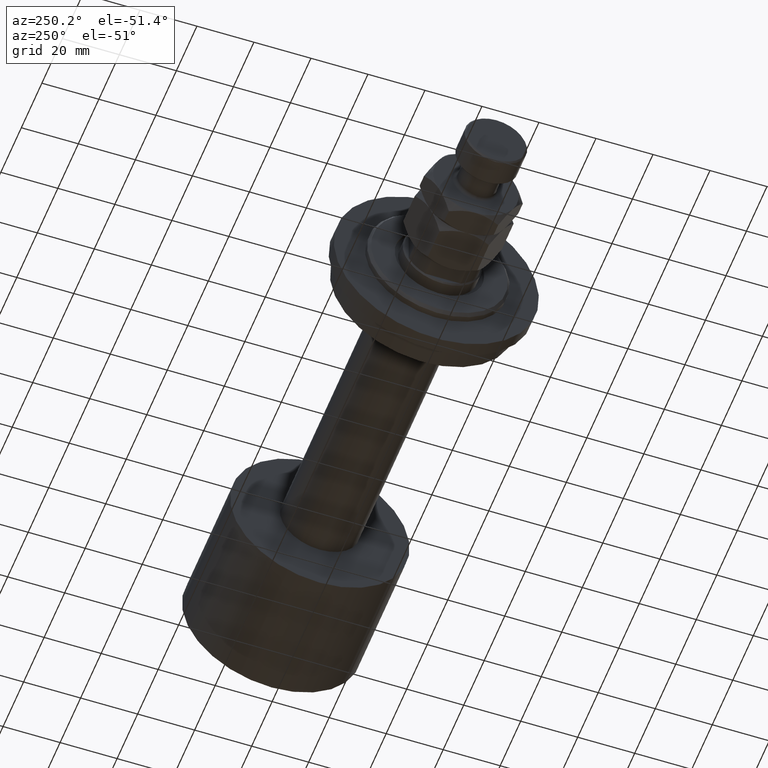
[diagram: clean part render]
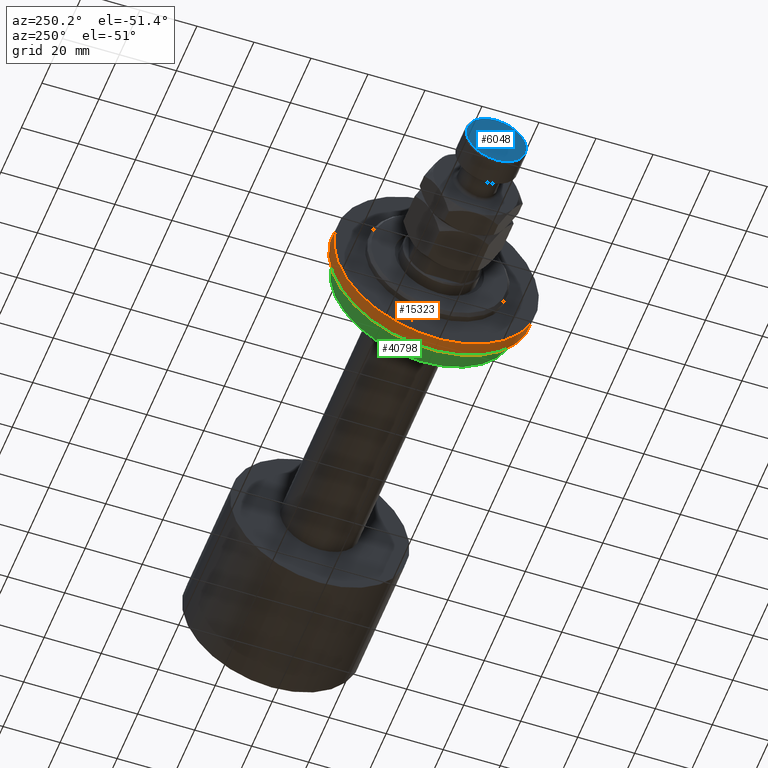
[diagram: same view with three faces highlighted in distinct colors, each labeled with its STEP entity id]
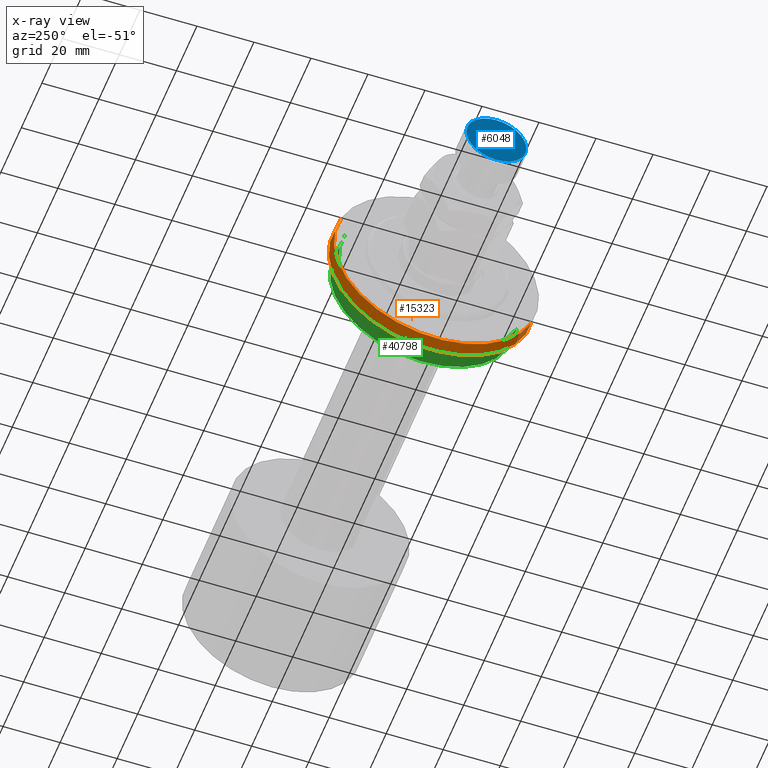
[diagram: x-ray of the same camera — body ghosted, the three highlighted faces saturated]
A machine part, auxiliary view with three faces highlighted in distinct colors.
The next image is the same camera in x-ray (body ghosted, the three faces saturated) — at least one of them is partly hidden behind the body in this view.
Their STEP definitions:

[orange] entity #15323 — the highlighted cylindrical surface (partial cylindrical patch) has radius 36 mm, axis along (-1, 0, 0).
#344 = VERTEX_POINT ( 'NONE', #1609 ) ;
#656 = DIRECTION ( 'NONE',  ( 1.000000000000000000, -0.000000000000000000, -0.000000000000000000 ) ) ;
#1609 = CARTESIAN_POINT ( 'NONE',  ( 0.000000000000000000, 4.408728476930470856E-15, 36.00000000000000000 ) ) ;
#2056 = VERTEX_POINT ( 'NONE', #14417 ) ;
#2481 = CARTESIAN_POINT ( 'NONE',  ( -5.000000000000000000, 0.000000000000000000, 0.000000000000000000 ) ) ;
#4038 = EDGE_LOOP ( 'NONE', ( #34679, #7449, #7803, #10973 ) ) ;
#5909 = CARTESIAN_POINT ( 'NONE',  ( -5.000000000000000000, 0.000000000000000000, -36.00000000000000000 ) ) ;
#6864 = VECTOR ( 'NONE', #656, 1000.000000000000000 ) ;
#7449 = ORIENTED_EDGE ( 'NONE', *, *, #14427, .T. ) ;
#7803 = ORIENTED_EDGE ( 'NONE', *, *, #19294, .T. ) ;
#7865 = CIRCLE ( 'NONE', #44563, 36.00000000000000000 ) ;
#10973 = ORIENTED_EDGE ( 'NONE', *, *, #26623, .F. ) ;
#11723 = EDGE_CURVE ( 'NONE', #35281, #20824, #7865, .T. ) ;
#13035 = CYLINDRICAL_SURFACE ( 'NONE', #31116, 36.00000000000000000 ) ;
#13605 = AXIS2_PLACEMENT_3D ( 'NONE', #32541, #18270, #14819 ) ;
#14417 = CARTESIAN_POINT ( 'NONE',  ( 0.000000000000000000, 0.000000000000000000, -36.00000000000000000 ) ) ;
#14427 = EDGE_CURVE ( 'NONE', #35281, #344, #43429, .T. ) ;
#14819 = DIRECTION ( 'NONE',  ( 0.000000000000000000, 0.000000000000000000, 1.000000000000000000 ) ) ;
#15323 = ADVANCED_FACE ( 'NONE', ( #27059 ), #13035, .T. ) ;
#17294 = DIRECTION ( 'NONE',  ( 0.000000000000000000, 0.000000000000000000, 1.000000000000000000 ) ) ;
#18270 = DIRECTION ( 'NONE',  ( -1.000000000000000000, 0.000000000000000000, 0.000000000000000000 ) ) ;
#19294 = EDGE_CURVE ( 'NONE', #344, #2056, #36378, .T. ) ;
#19676 = VECTOR ( 'NONE', #30053, 1000.000000000000000 ) ;
#20824 = VERTEX_POINT ( 'NONE', #36586 ) ;
#22911 = LINE ( 'NONE', #5909, #19676 ) ;
#23962 = CARTESIAN_POINT ( 'NONE',  ( -5.000000000000000000, 0.000000000000000000, 0.000000000000000000 ) ) ;
#26611 = DIRECTION ( 'NONE',  ( 1.000000000000000000, -0.000000000000000000, -0.000000000000000000 ) ) ;
#26623 = EDGE_CURVE ( 'NONE', #20824, #2056, #22911, .T. ) ;
#27059 = FACE_OUTER_BOUND ( 'NONE', #4038, .T. ) ;
#27961 = CARTESIAN_POINT ( 'NONE',  ( -5.000000000000000000, 4.408728476930470856E-15, 36.00000000000000000 ) ) ;
#30053 = DIRECTION ( 'NONE',  ( 1.000000000000000000, -0.000000000000000000, -0.000000000000000000 ) ) ;
#31116 = AXIS2_PLACEMENT_3D ( 'NONE', #2481, #26611, #40426 ) ;
#32541 = CARTESIAN_POINT ( 'NONE',  ( 0.000000000000000000, 0.000000000000000000, 0.000000000000000000 ) ) ;
#34679 = ORIENTED_EDGE ( 'NONE', *, *, #11723, .F. ) ;
#35281 = VERTEX_POINT ( 'NONE', #27961 ) ;
#36378 = CIRCLE ( 'NONE', #13605, 36.00000000000000000 ) ;
#36586 = CARTESIAN_POINT ( 'NONE',  ( -5.000000000000000000, 0.000000000000000000, -36.00000000000000000 ) ) ;
#38009 = DIRECTION ( 'NONE',  ( -1.000000000000000000, 0.000000000000000000, 0.000000000000000000 ) ) ;
#40426 = DIRECTION ( 'NONE',  ( 0.000000000000000000, 0.000000000000000000, -1.000000000000000000 ) ) ;
#43429 = LINE ( 'NONE', #43653, #6864 ) ;
#43653 = CARTESIAN_POINT ( 'NONE',  ( -5.000000000000000000, 4.408728476930470856E-15, 36.00000000000000000 ) ) ;
#44563 = AXIS2_PLACEMENT_3D ( 'NONE', #23962, #38009, #17294 ) ;

[blue] entity #6048 — the highlighted planar face has unit normal (-1, 0, 0).
#962 = ORIENTED_EDGE ( 'NONE', *, *, #16757, .T. ) ;
#2711 = CARTESIAN_POINT ( 'NONE',  ( 10.50000000000000178, 1.316495309083404815E-15, 45.00000000000000711 ) ) ;
#2776 = CARTESIAN_POINT ( 'NONE',  ( 0.000000000000000000, 0.000000000000000000, 45.00000000000000711 ) ) ;
#3367 = ORIENTED_EDGE ( 'NONE', *, *, #7787, .T. ) ;
#6048 = ADVANCED_FACE ( 'NONE', ( #37851 ), #6353, .T. ) ;
#6353 = PLANE ( 'NONE',  #12834 ) ;
#7787 = EDGE_CURVE ( 'NONE', #17357, #17157, #35663, .T. ) ;
#8415 = CARTESIAN_POINT ( 'NONE',  ( -10.50000000000000178, 0.000000000000000000, 45.00000000000000711 ) ) ;
#12834 = AXIS2_PLACEMENT_3D ( 'NONE', #27252, #13004, #44760 ) ;
#13004 = DIRECTION ( 'NONE',  ( 0.000000000000000000, 0.000000000000000000, 1.000000000000000000 ) ) ;
#13622 = AXIS2_PLACEMENT_3D ( 'NONE', #39605, #29700, #26007 ) ;
#16459 = CIRCLE ( 'NONE', #33350, 10.50000000000000178 ) ;
#16757 = EDGE_CURVE ( 'NONE', #17157, #17357, #16459, .T. ) ;
#17157 = VERTEX_POINT ( 'NONE', #2711 ) ;
#17357 = VERTEX_POINT ( 'NONE', #8415 ) ;
#26007 = DIRECTION ( 'NONE',  ( 1.000000000000000000, 0.000000000000000000, 0.000000000000000000 ) ) ;
#27252 = CARTESIAN_POINT ( 'NONE',  ( 0.000000000000000000, 0.000000000000000000, 45.00000000000000711 ) ) ;
#29700 = DIRECTION ( 'NONE',  ( 0.000000000000000000, 0.000000000000000000, 1.000000000000000000 ) ) ;
#33350 = AXIS2_PLACEMENT_3D ( 'NONE', #2776, #41392, #34041 ) ;
#34041 = DIRECTION ( 'NONE',  ( 1.000000000000000000, 0.000000000000000000, 0.000000000000000000 ) ) ;
#35663 = CIRCLE ( 'NONE', #13622, 10.50000000000000178 ) ;
#37851 = FACE_OUTER_BOUND ( 'NONE', #40259, .T. ) ;
#39605 = CARTESIAN_POINT ( 'NONE',  ( 0.000000000000000000, 0.000000000000000000, 45.00000000000000711 ) ) ;
#40259 = EDGE_LOOP ( 'NONE', ( #3367, #962 ) ) ;
#41392 = DIRECTION ( 'NONE',  ( 0.000000000000000000, 0.000000000000000000, 1.000000000000000000 ) ) ;
#44760 = DIRECTION ( 'NONE',  ( 1.000000000000000000, 0.000000000000000000, -0.000000000000000000 ) ) ;

[green] entity #40798 — the highlighted cylindrical surface (partial cylindrical patch) has radius 32.5 mm, axis along (-1, 0, 0).
#95 = DIRECTION ( 'NONE',  ( -1.000000000000000000, 0.000000000000000000, 0.000000000000000000 ) ) ;
#811 = DIRECTION ( 'NONE',  ( 1.000000000000000000, -0.000000000000000000, -0.000000000000000000 ) ) ;
#3422 = ORIENTED_EDGE ( 'NONE', *, *, #43168, .F. ) ;
#3799 = AXIS2_PLACEMENT_3D ( 'NONE', #34358, #30668, #44706 ) ;
#5016 = VERTEX_POINT ( 'NONE', #38347 ) ;
#6354 = EDGE_LOOP ( 'NONE', ( #7755, #33026, #26989, #3422 ) ) ;
#6555 = DIRECTION ( 'NONE',  ( 0.000000000000000000, 0.000000000000000000, 1.000000000000000000 ) ) ;
#7755 = ORIENTED_EDGE ( 'NONE', *, *, #27563, .F. ) ;
#9069 = AXIS2_PLACEMENT_3D ( 'NONE', #24005, #95, #6555 ) ;
#9146 = DIRECTION ( 'NONE',  ( 1.000000000000000000, -0.000000000000000000, -0.000000000000000000 ) ) ;
#11418 = VERTEX_POINT ( 'NONE', #45026 ) ;
#15697 = EDGE_CURVE ( 'NONE', #28774, #11418, #26702, .T. ) ;
#16487 = CARTESIAN_POINT ( 'NONE',  ( -13.50000000000000178, 0.000000000000000000, -32.50000000000000000 ) ) ;
#16693 = CARTESIAN_POINT ( 'NONE',  ( -13.50000000000000178, 0.000000000000000000, 0.000000000000000000 ) ) ;
#17016 = CARTESIAN_POINT ( 'NONE',  ( -5.000000000000000000, 3.980102097228898626E-15, 32.50000000000000000 ) ) ;
#18048 = CARTESIAN_POINT ( 'NONE',  ( -13.50000000000000178, 3.980102097228898626E-15, 32.50000000000000000 ) ) ;
#20309 = CYLINDRICAL_SURFACE ( 'NONE', #3799, 32.50000000000000000 ) ;
#22409 = LINE ( 'NONE', #18048, #35951 ) ;
#23257 = VERTEX_POINT ( 'NONE', #37085 ) ;
#23993 = AXIS2_PLACEMENT_3D ( 'NONE', #16693, #45222, #30733 ) ;
#24005 = CARTESIAN_POINT ( 'NONE',  ( -5.000000000000000000, 0.000000000000000000, 0.000000000000000000 ) ) ;
#26702 = CIRCLE ( 'NONE', #9069, 32.50000000000000000 ) ;
#26989 = ORIENTED_EDGE ( 'NONE', *, *, #15697, .T. ) ;
#27563 = EDGE_CURVE ( 'NONE', #5016, #23257, #29893, .T. ) ;
#28774 = VERTEX_POINT ( 'NONE', #17016 ) ;
#29407 = LINE ( 'NONE', #16487, #40487 ) ;
#29893 = CIRCLE ( 'NONE', #23993, 32.50000000000000000 ) ;
#30668 = DIRECTION ( 'NONE',  ( 1.000000000000000000, -0.000000000000000000, -0.000000000000000000 ) ) ;
#30733 = DIRECTION ( 'NONE',  ( 0.000000000000000000, 0.000000000000000000, 1.000000000000000000 ) ) ;
#33026 = ORIENTED_EDGE ( 'NONE', *, *, #33503, .T. ) ;
#33503 = EDGE_CURVE ( 'NONE', #5016, #28774, #22409, .T. ) ;
#34118 = FACE_OUTER_BOUND ( 'NONE', #6354, .T. ) ;
#34358 = CARTESIAN_POINT ( 'NONE',  ( -13.50000000000000178, 0.000000000000000000, 0.000000000000000000 ) ) ;
#35951 = VECTOR ( 'NONE', #811, 1000.000000000000000 ) ;
#37085 = CARTESIAN_POINT ( 'NONE',  ( -13.50000000000000178, 0.000000000000000000, -32.50000000000000000 ) ) ;
#38347 = CARTESIAN_POINT ( 'NONE',  ( -13.50000000000000178, 3.980102097228898626E-15, 32.50000000000000000 ) ) ;
#40487 = VECTOR ( 'NONE', #9146, 1000.000000000000000 ) ;
#40798 = ADVANCED_FACE ( 'NONE', ( #34118 ), #20309, .T. ) ;
#43168 = EDGE_CURVE ( 'NONE', #23257, #11418, #29407, .T. ) ;
#44706 = DIRECTION ( 'NONE',  ( 0.000000000000000000, 0.000000000000000000, -1.000000000000000000 ) ) ;
#45026 = CARTESIAN_POINT ( 'NONE',  ( -5.000000000000000000, 0.000000000000000000, -32.50000000000000000 ) ) ;
#45222 = DIRECTION ( 'NONE',  ( -1.000000000000000000, 0.000000000000000000, 0.000000000000000000 ) ) ;